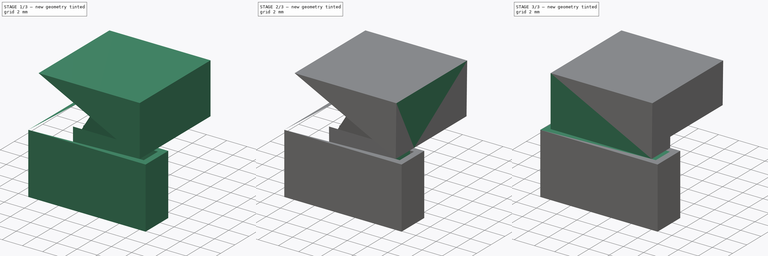
[diagram: build sequence overview — one tinted view per stage of 3, left to right]
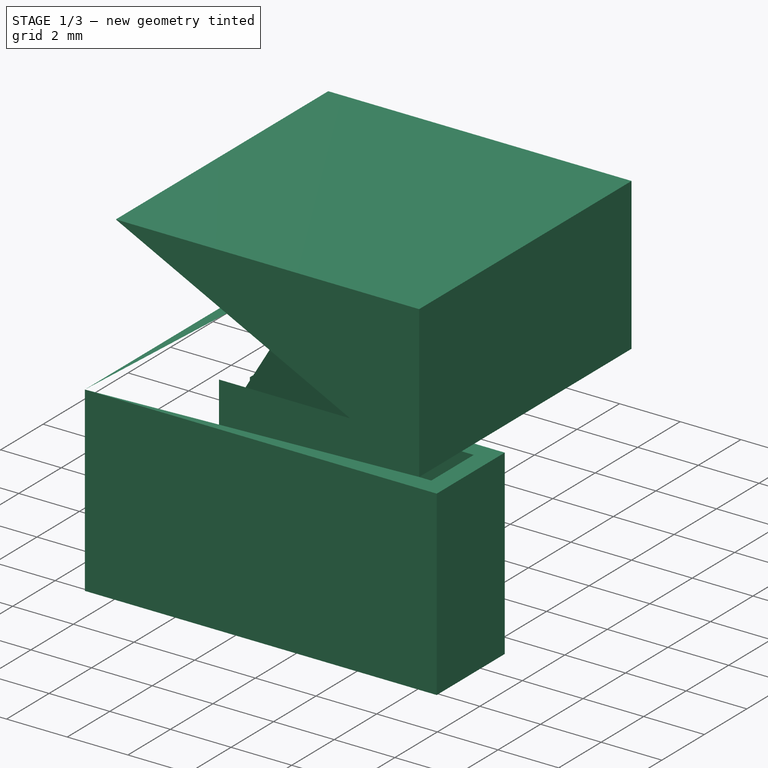
[diagram: stage 1 of 3 — iso view after this stage's code; geometry added in this stage tinted green]
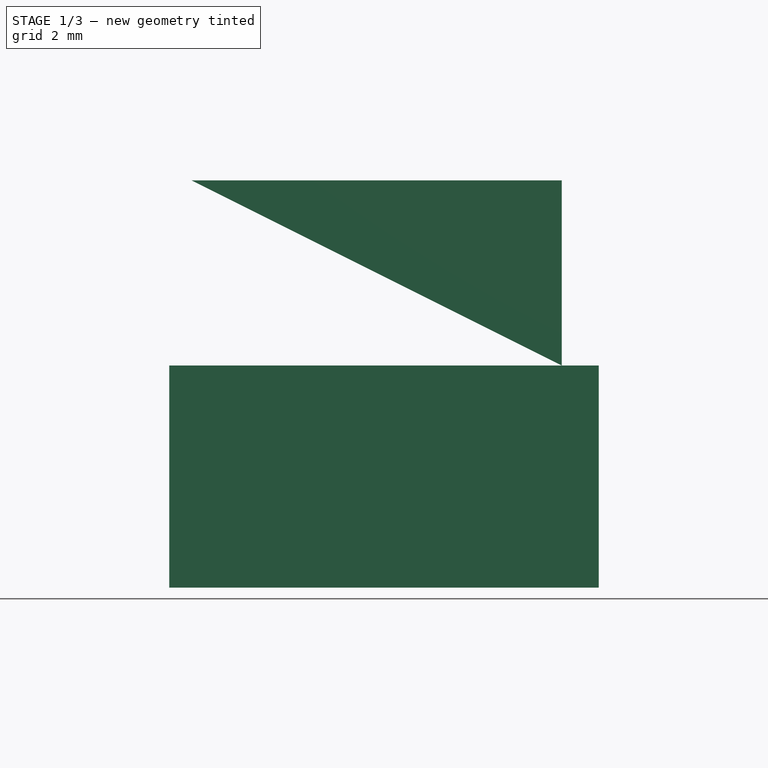
[diagram: stage 1 of 3 — front view after this stage's code; geometry added in this stage tinted green]
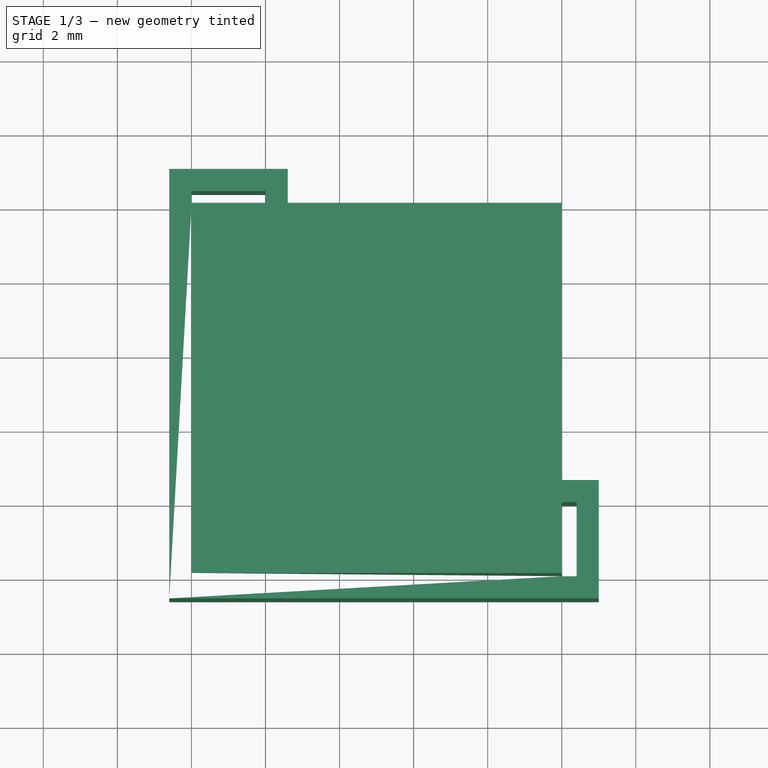
[diagram: stage 1 of 3 — top view after this stage's code; geometry added in this stage tinted green]
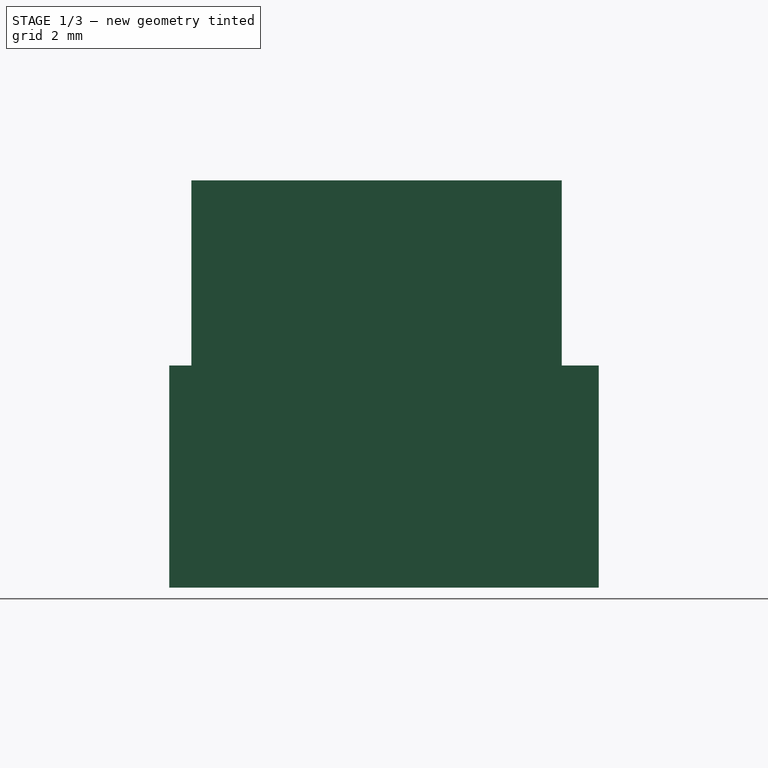
[diagram: stage 1 of 3 — right view after this stage's code; geometry added in this stage tinted green]
FCSTD DOCUMENT  (FreeCAD 0.21R33668 +7 (Git))
Label: L-grip-1
License: All rights reserved
LicenseURL: http://en.wikipedia.org/wiki/All_rights_reserved
objects: Sketcher::SketchObject×4, PartDesign::Pad×3, PartDesign::Draft×1, PartDesign::CoordinateSystem×1, PartDesign::Pocket×1, PartDesign::Body×1, App::Part×1
note: 16 computed .brp shape members not serialized (recipe doc carries the construction recipe); baked Part::Feature solids carry a one-line shape summary decoded from their .brp
EXTERNAL_REF file=planB.FCStd obj=Spreadsheet

FEATURE [Sketcher::SketchObject] Sketch
  FullyConstrained = true
  MapMode = 5
  Support = -> [XY_Plane]
  expr: Constraints[13] = planB#<<data>>.L_size + 0.5 + 0.4
  expr: Constraints[16] = planB#<<data>>.L_thickness + 0.4
  sketch-geometry (19):
    g0: LineSegment StartX=0 StartY=0 StartZ=0 EndX=0 EndY=10.4 EndZ=0
    g1: LineSegment StartX=0 StartY=10.4 StartZ=0 EndX=2 EndY=10.4 EndZ=0
    g2: LineSegment StartX=2 StartY=10.4 StartZ=0 EndX=2 EndY=2 EndZ=0
    g3: LineSegment StartX=2 StartY=2 StartZ=0 EndX=10.4 EndY=2 EndZ=0
    g4: LineSegment StartX=10.4 StartY=2 StartZ=0 EndX=10.4 EndY=0 EndZ=0
    g5: LineSegment StartX=10.4 StartY=0 StartZ=0 EndX=0 EndY=0 EndZ=0
    g6: LineSegment StartX=-0.6 StartY=-0.6 StartZ=0 EndX=11 EndY=-0.6 EndZ=0
    g7: LineSegment StartX=-0.6 StartY=11 StartZ=0 EndX=-0.6 EndY=-0.6 EndZ=0
    g8: LineSegment StartX=0 StartY=0 StartZ=0 EndX=0 EndY=-0.6 EndZ=0
    g9: LineSegment StartX=0 StartY=0 StartZ=0 EndX=-0.6 EndY=0 EndZ=0
    g10: LineSegment StartX=0 StartY=10.4 StartZ=0 EndX=0 EndY=11 EndZ=0
    g11: LineSegment StartX=10.4 StartY=0 StartZ=0 EndX=11 EndY=0 EndZ=0
    g12: LineSegment StartX=11 StartY=11 StartZ=0 EndX=2.6 EndY=11 EndZ=0
    g13: LineSegment StartX=2.6 StartY=11 StartZ=0 EndX=-0.6 EndY=11 EndZ=0
    g14: LineSegment StartX=11 StartY=-0.6 StartZ=0 EndX=11 EndY=2.6 EndZ=0
    g15: LineSegment StartX=11 StartY=2.6 StartZ=0 EndX=11 EndY=11 EndZ=0
    g16: LineSegment StartX=2.6 StartY=11 StartZ=0 EndX=2.6 EndY=2.6 EndZ=0
    g17: LineSegment StartX=2.6 StartY=2.6 StartZ=0 EndX=11 EndY=2.6 EndZ=0
    g18: LineSegment StartX=2.6 StartY=2.6 StartZ=0 EndX=2 EndY=2.6 EndZ=0
  constraints (55):
    c: Coincident(g-1,g0)
    c: PointOnObject(g0,g-2)
    c: Coincident(g0,g1)
    c: Horizontal(g1)
    c: Coincident(g1,g2)
    c: Vertical(g2)
    c: Coincident(g2,g3)
    c: Horizontal(g3)
    c: Coincident(g3,g4)
    c: Vertical(g4)
    c: Coincident(g4,g5)
    c: Coincident(g5,g0)
    c: Horizontal(g5)
    c: DistanceX(g5,g5) = 10.4
    c: Equal(g5,g0)
    c: Equal(g1,g4)
    c: Distance(g4) = 2
    c: Coincident(g6,g14)
    c: Coincident(g15,g12)
    c: Coincident(g13,g7)
    c: Coincident(g7,g6)
    c: Horizontal(g6)
    c: Vertical(g7)
    c: Coincident(g8,g0)
    c: PointOnObject(g8,g6)
    c: Vertical(g8)
    c: Coincident(g9,g0)
    c: PointOnObject(g9,g7)
    c: Horizontal(g9)
    c: Coincident(g10,g0)
    c: Vertical(g10)
    c: Coincident(g11,g4)
    c: Horizontal(g11)
    c: Equal(g8,g9)
    c: Equal(g9,g11)
    c: Equal(g11,g10)
    c: Distance(g9) = 0.6
    c: Coincident(g12,g13)
    c: Horizontal(g12)
    c: Horizontal(g13)
    c: PointOnObject(g10,g13)
    c: Coincident(g14,g15)
    c: Vertical(g14)
    c: Vertical(g15)
    c: PointOnObject(g11,g14)
    c: Coincident(g13,g16)
    c: Vertical(g16)
    c: Coincident(g16,g17)
    c: Coincident(g17,g14)
    c: Horizontal(g17)
    c: Equal(g12,g15)
    c: Coincident(g18,g16)
    c: PointOnObject(g18,g2)
    c: Horizontal(g18)
    c: Equal(g18,g9)
FEATURE [PartDesign::Pad] Pad
  Direction = (0,0,1)
  Length = 6
  Length2 = 10
  Profile = -> Sketch
  ReferenceAxis = -> Sketch [N_Axis]
  Reversed = true
  Type = 0
FEATURE [Sketcher::SketchObject] Sketch001
  FullyConstrained = true
  MapMode = 5
  Support = -> [XY_Plane]
  sketch-geometry (4):
    g0: LineSegment StartX=0 StartY=0 StartZ=0 EndX=10 EndY=0 EndZ=0
    g1: LineSegment StartX=10 StartY=0 StartZ=0 EndX=10 EndY=10 EndZ=0
    g2: LineSegment StartX=10 StartY=10 StartZ=0 EndX=0 EndY=10 EndZ=0
    g3: LineSegment StartX=0 StartY=10 StartZ=0 EndX=0 EndY=0 EndZ=0
  constraints (11):
    c: Coincident(g0,g1)
    c: Coincident(g1,g2)
    c: Coincident(g2,g3)
    c: Coincident(g3,g0)
    c: Horizontal(g0)
    c: Horizontal(g2)
    c: Vertical(g1)
    c: Vertical(g3)
    c: DistanceX(g2,g2) = 10
    c: Equal(g2,g3)
    c: Coincident(g0,g-1)
FEATURE [PartDesign::Pad] Pad001
  BaseFeature = -> Pad
  Direction = (0,0,1)
  Length = 5
  Length2 = 10
  Profile = -> Sketch001
  ReferenceAxis = -> Sketch001 [N_Axis]
  Type = 0
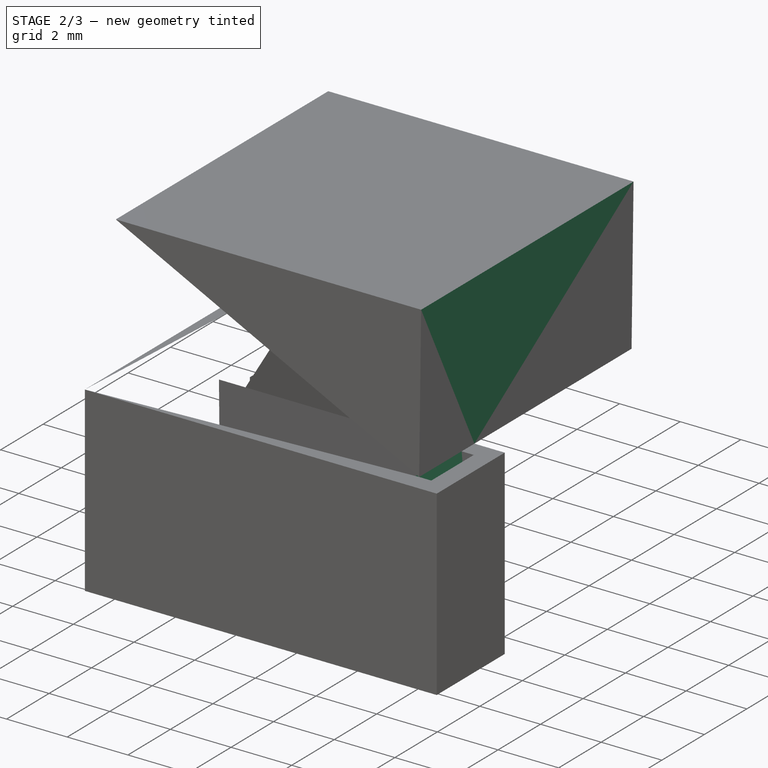
[diagram: stage 2 of 3 — iso view after this stage's code; geometry added in this stage tinted green]
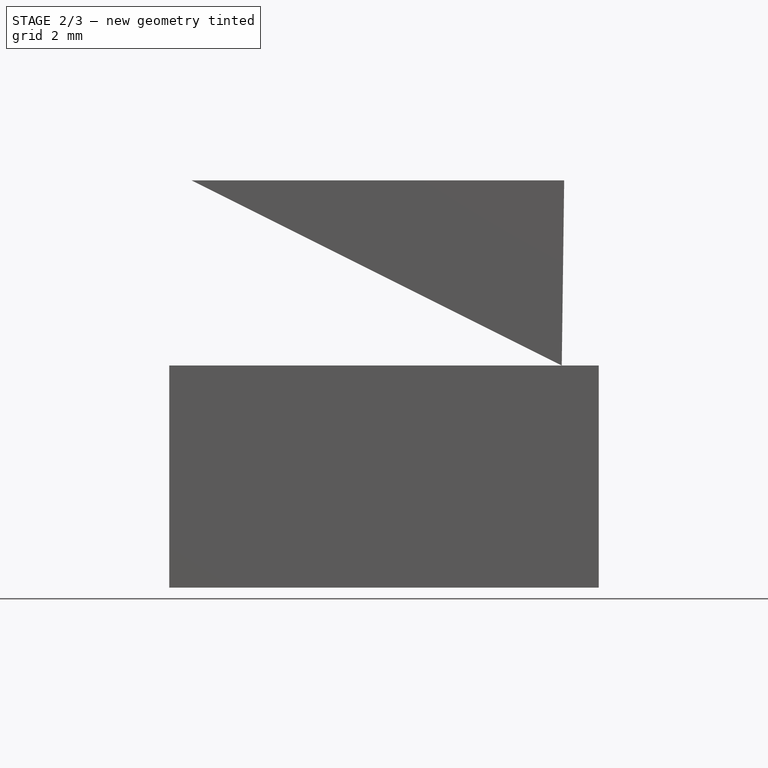
[diagram: stage 2 of 3 — front view after this stage's code; geometry added in this stage tinted green]
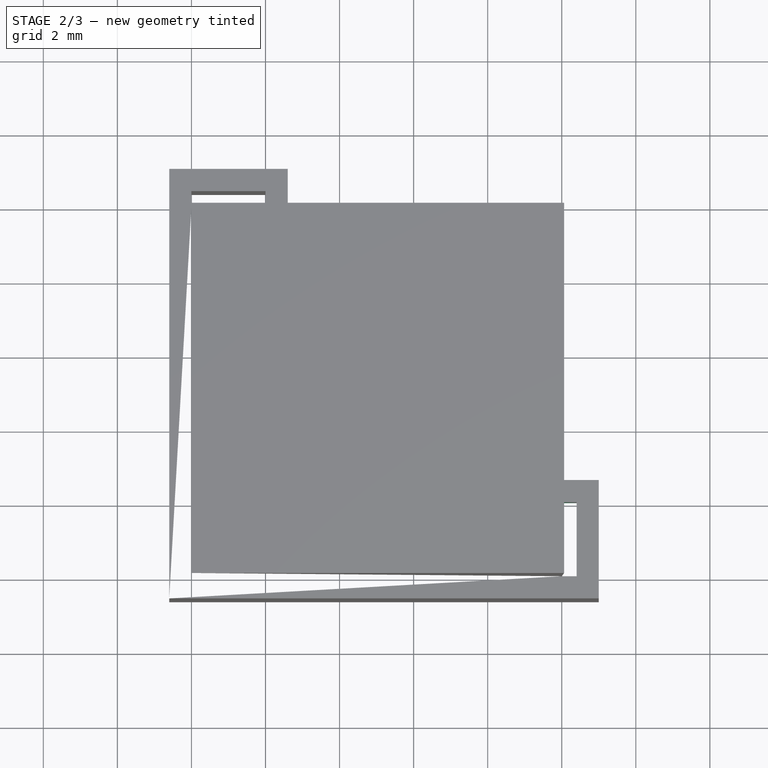
[diagram: stage 2 of 3 — top view after this stage's code; geometry added in this stage tinted green]
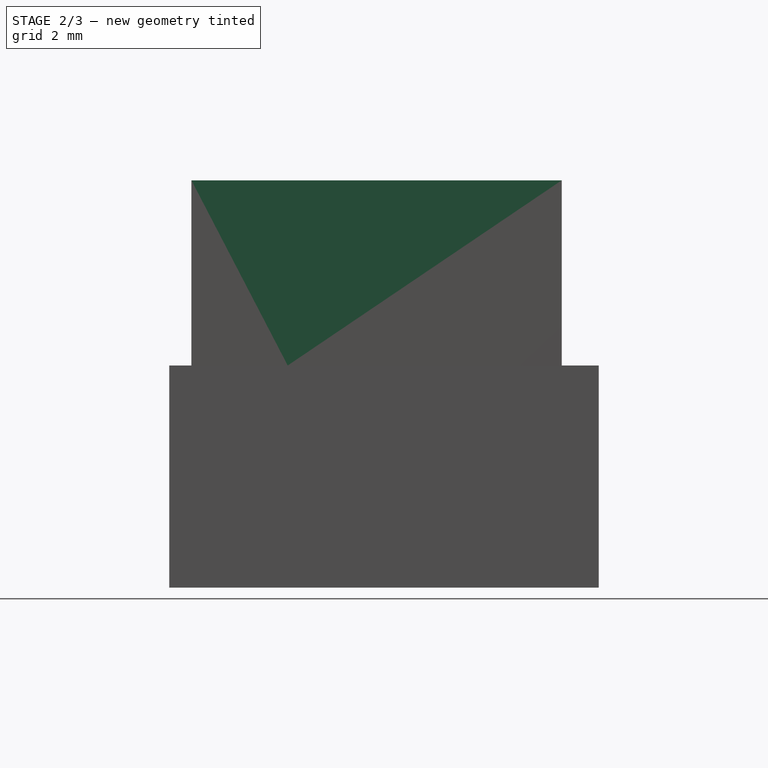
[diagram: stage 2 of 3 — right view after this stage's code; geometry added in this stage tinted green]
FEATURE [PartDesign::Draft] Draft
  Angle = 0.75
  Base = -> Pad001 [Face14,Face15,Face12,Face17,Face16,Face13]
  BaseFeature = -> Pad001
  NeutralPlane = -> XY_Plane
  Reversed = true
  SupportTransform = false
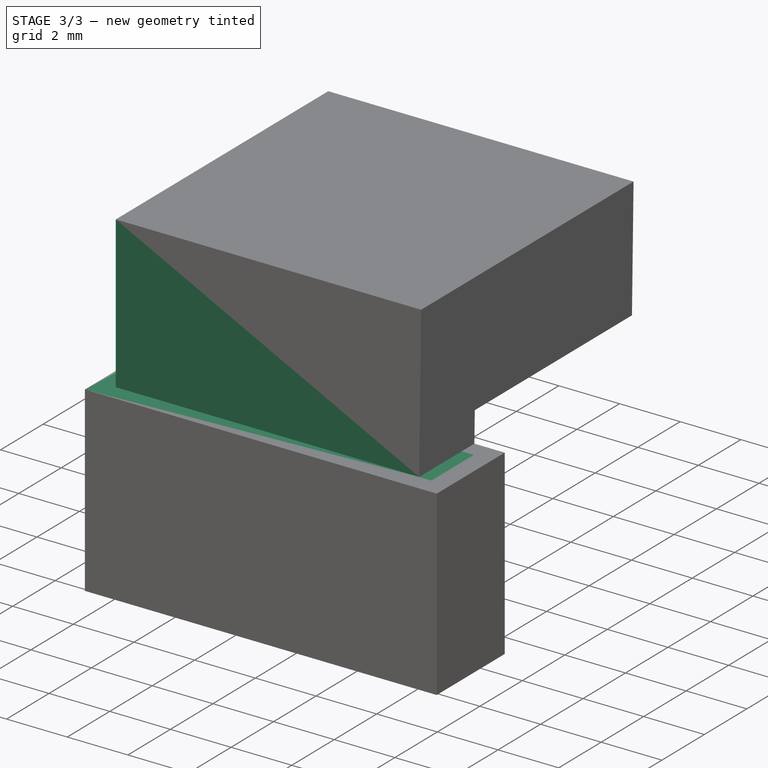
[diagram: stage 3 of 3 — iso view after this stage's code; geometry added in this stage tinted green]
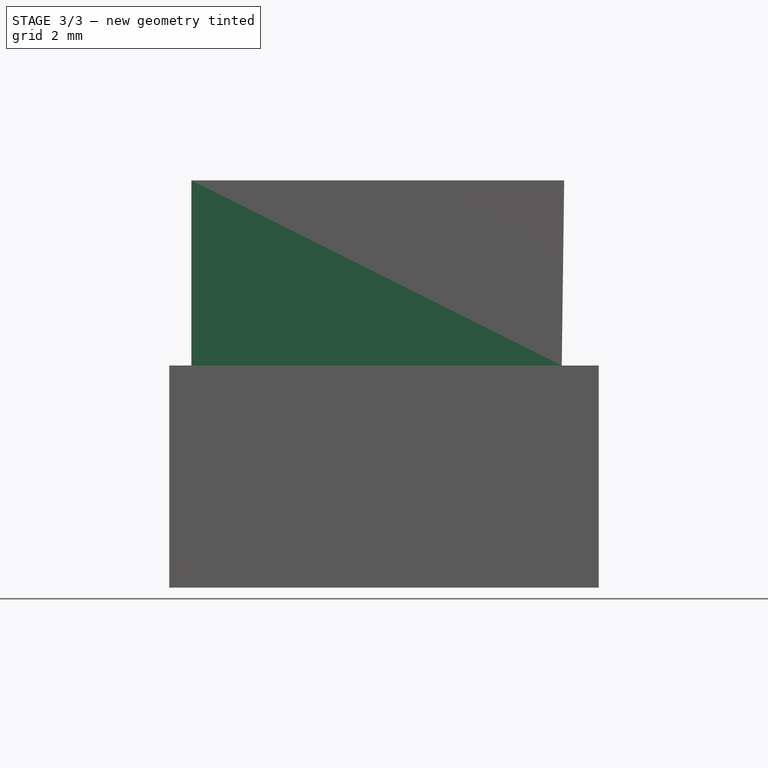
[diagram: stage 3 of 3 — front view after this stage's code; geometry added in this stage tinted green]
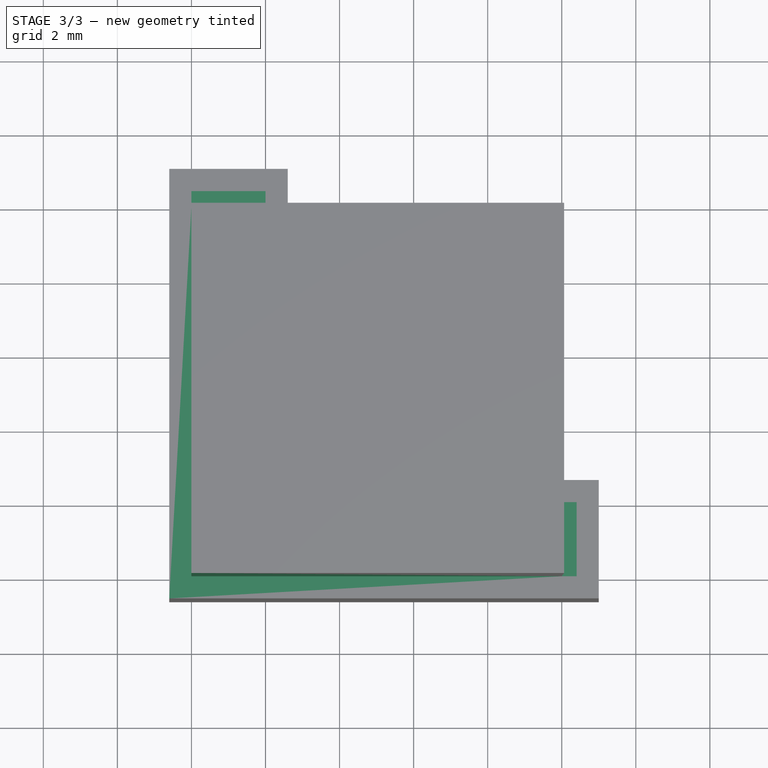
[diagram: stage 3 of 3 — top view after this stage's code; geometry added in this stage tinted green]
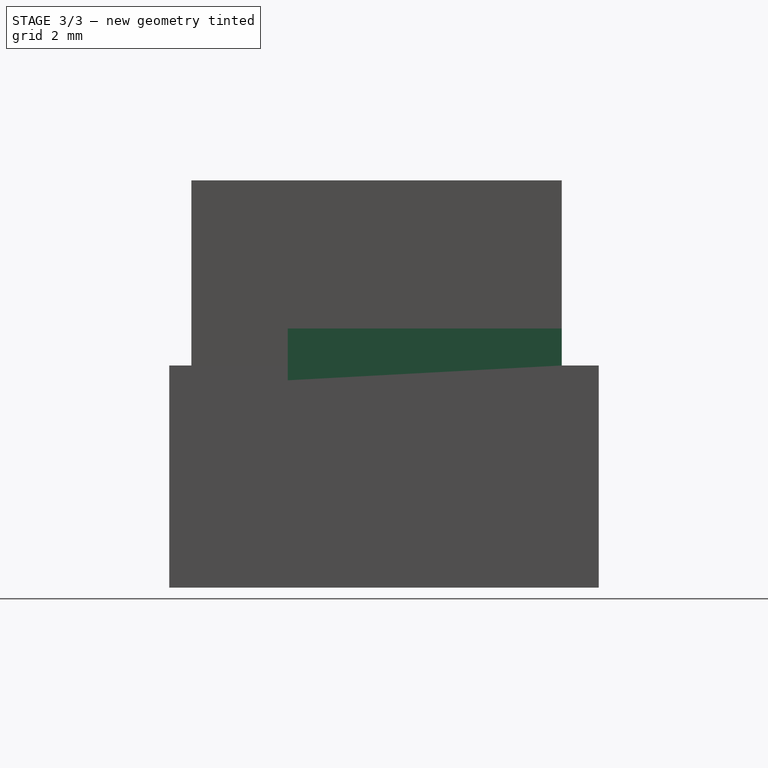
[diagram: stage 3 of 3 — right view after this stage's code; geometry added in this stage tinted green]
FEATURE [PartDesign::CoordinateSystem] LCS_0
  AttacherType = Attacher::AttachEngine3D
  MapMode = 2
  Support = -> [X_Axis001]
FEATURE [Sketcher::SketchObject] Sketch002
  FullyConstrained = true
  MapMode = 5
  Support = -> [XY_Plane]
  sketch-geometry (8):
    g0: LineSegment StartX=-0.6 StartY=-0.6 StartZ=0 EndX=11 EndY=-0.6 EndZ=0
    g1: LineSegment StartX=-0.6 StartY=11 StartZ=0 EndX=-0.6 EndY=-0.6 EndZ=0
    g2: LineSegment StartX=11 StartY=11 StartZ=0 EndX=3 EndY=11 EndZ=0
    g3: LineSegment StartX=3 StartY=11 StartZ=0 EndX=-0.6 EndY=11 EndZ=0
    g4: LineSegment StartX=11 StartY=-0.6 StartZ=0 EndX=11 EndY=3 EndZ=0
    g5: LineSegment StartX=11 StartY=3 StartZ=0 EndX=11 EndY=11 EndZ=0
    g6: LineSegment StartX=3 StartY=11 StartZ=0 EndX=3 EndY=3 EndZ=0
    g7: LineSegment StartX=3 StartY=3 StartZ=0 EndX=11 EndY=3 EndZ=0
  constraints (23):
    c: Coincident(g0,g4)
    c: Coincident(g5,g2)
    c: Coincident(g3,g1)
    c: Coincident(g1,g0)
    c: Horizontal(g0)
    c: Vertical(g1)
    c: DistanceX(g0) = -0.6
    c: DistanceY(g0) = -0.6
    c: DistanceX(g5) = 11
    c: DistanceY(g5) = 11
    c: Coincident(g2,g3)
    c: Horizontal(g2)
    c: Horizontal(g3)
    c: Coincident(g4,g5)
    c: Vertical(g4)
    c: Vertical(g5)
    c: Coincident(g2,g6)
    c: Vertical(g6)
    c: Coincident(g6,g7)
    c: Coincident(g7,g4)
    c: Horizontal(g7)
    c: Equal(g3,g4)
    c: Distance(g3) = 3.6
FEATURE [PartDesign::Pad] Pad002
  BaseFeature = -> Draft
  Direction = (0,0,1)
  Length = 0.4
  Length2 = 10
  Profile = -> Sketch002
  ReferenceAxis = -> Sketch002 [N_Axis]
  Reversed = true
  Type = 0
FEATURE [Sketcher::SketchObject] Sketch003
  FullyConstrained = false
  MapMode = 5
  Support = -> [XY_Plane]
  sketch-geometry (4):
    g0: LineSegment StartX=2.6 StartY=2.6 StartZ=0 EndX=11.3763 EndY=2.6 EndZ=0
    g1: LineSegment StartX=11.3763 StartY=2.6 StartZ=0 EndX=11.3763 EndY=11.0694 EndZ=0
    g2: LineSegment StartX=11.3763 StartY=11.0694 StartZ=0 EndX=2.6 EndY=11.0694 EndZ=0
    g3: LineSegment StartX=2.6 StartY=11.0694 StartZ=0 EndX=2.6 EndY=2.6 EndZ=0
  constraints (10):
    c: Coincident(g0,g1)
    c: Coincident(g1,g2)
    c: Coincident(g2,g3)
    c: Coincident(g3,g0)
    c: Horizontal(g0)
    c: Horizontal(g2)
    c: Vertical(g1)
    c: Vertical(g3)
    c: DistanceX(g0) = 2.6
    c: DistanceY(g0) = 2.6
FEATURE [PartDesign::Pocket] Pocket
  BaseFeature = -> Pad002
  Direction = (0,0,-1)
  Length = 2
  Length2 = 5
  Midplane = true
  Profile = -> Sketch003
  ReferenceAxis = -> Sketch003 [N_Axis]
  Type = 0
FEATURE [PartDesign::Body] Body
  Group = -> [Sketch,Pad,Sketch001,Pad001,Draft,Sketch002,Pad002,Sketch003,Pocket]
  Origin = -> Origin
  Tip = -> Pocket
FEATURE [App::Part] L_grip_1
  Group = -> [LCS_0,Body]
  Origin = -> Origin001
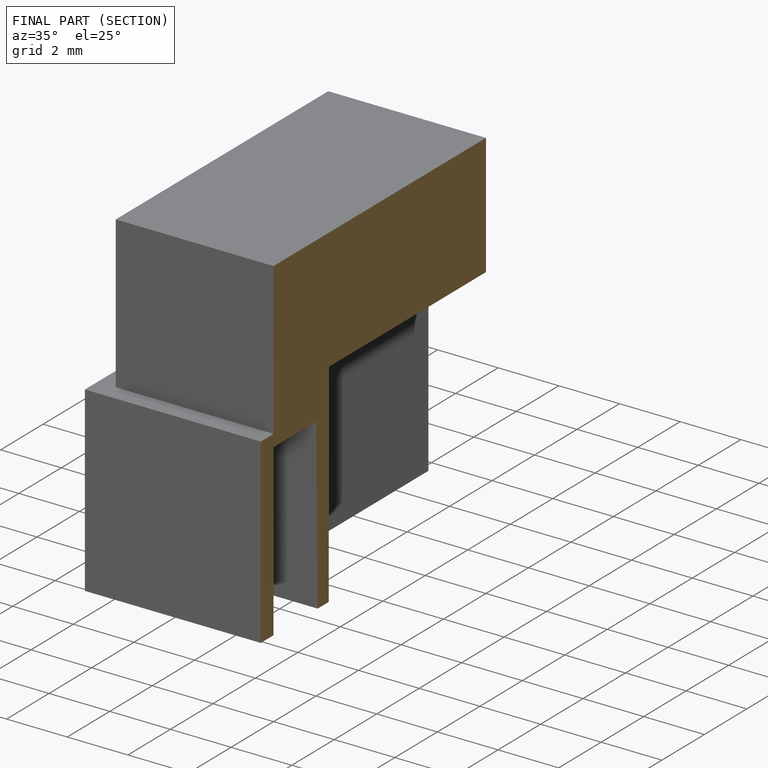
[diagram: finished part — half-section view (interior)]
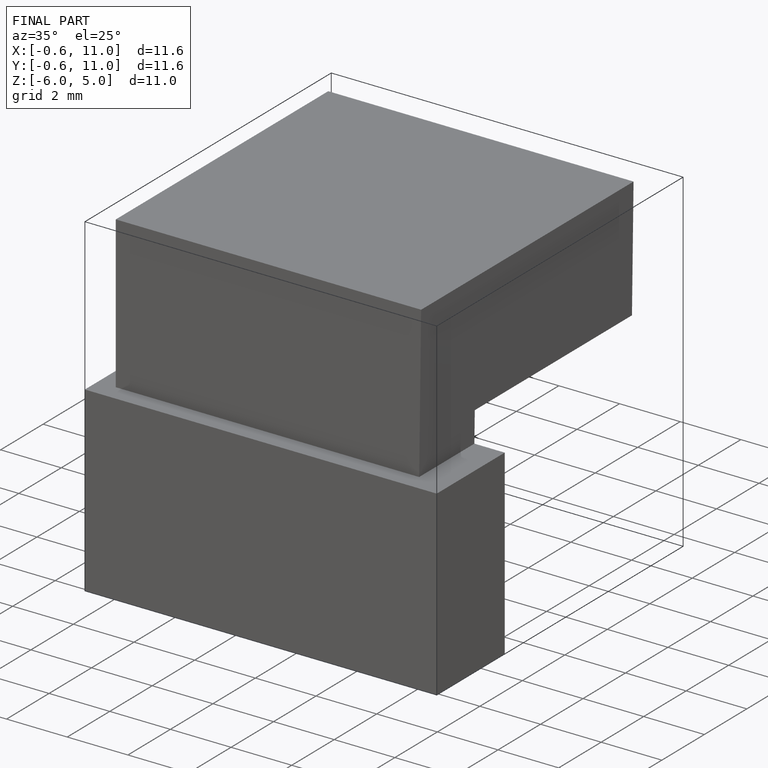
[diagram: finished part — iso view with bounding-box wireframe]
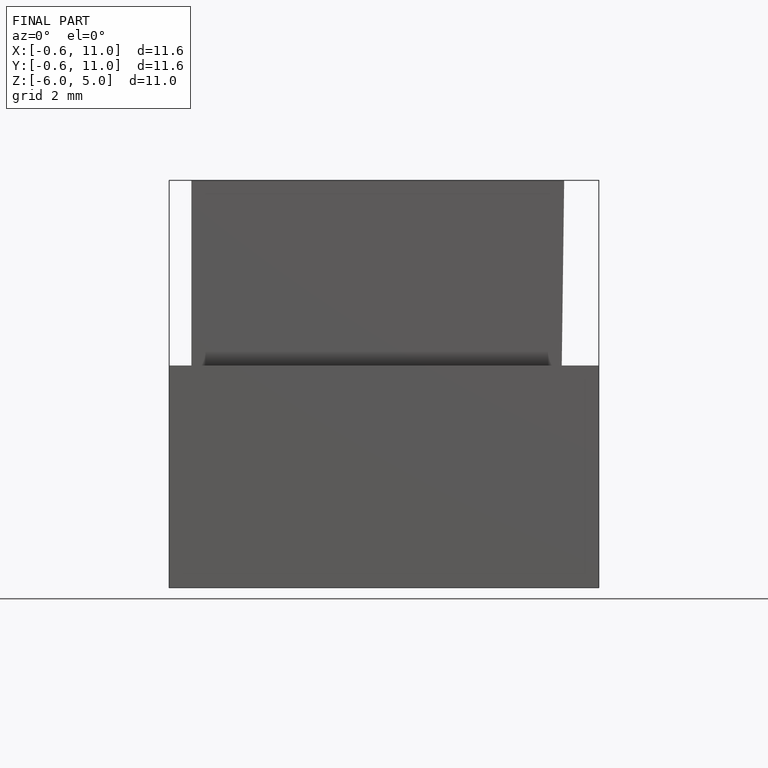
[diagram: finished part — front view with bounding-box wireframe]
